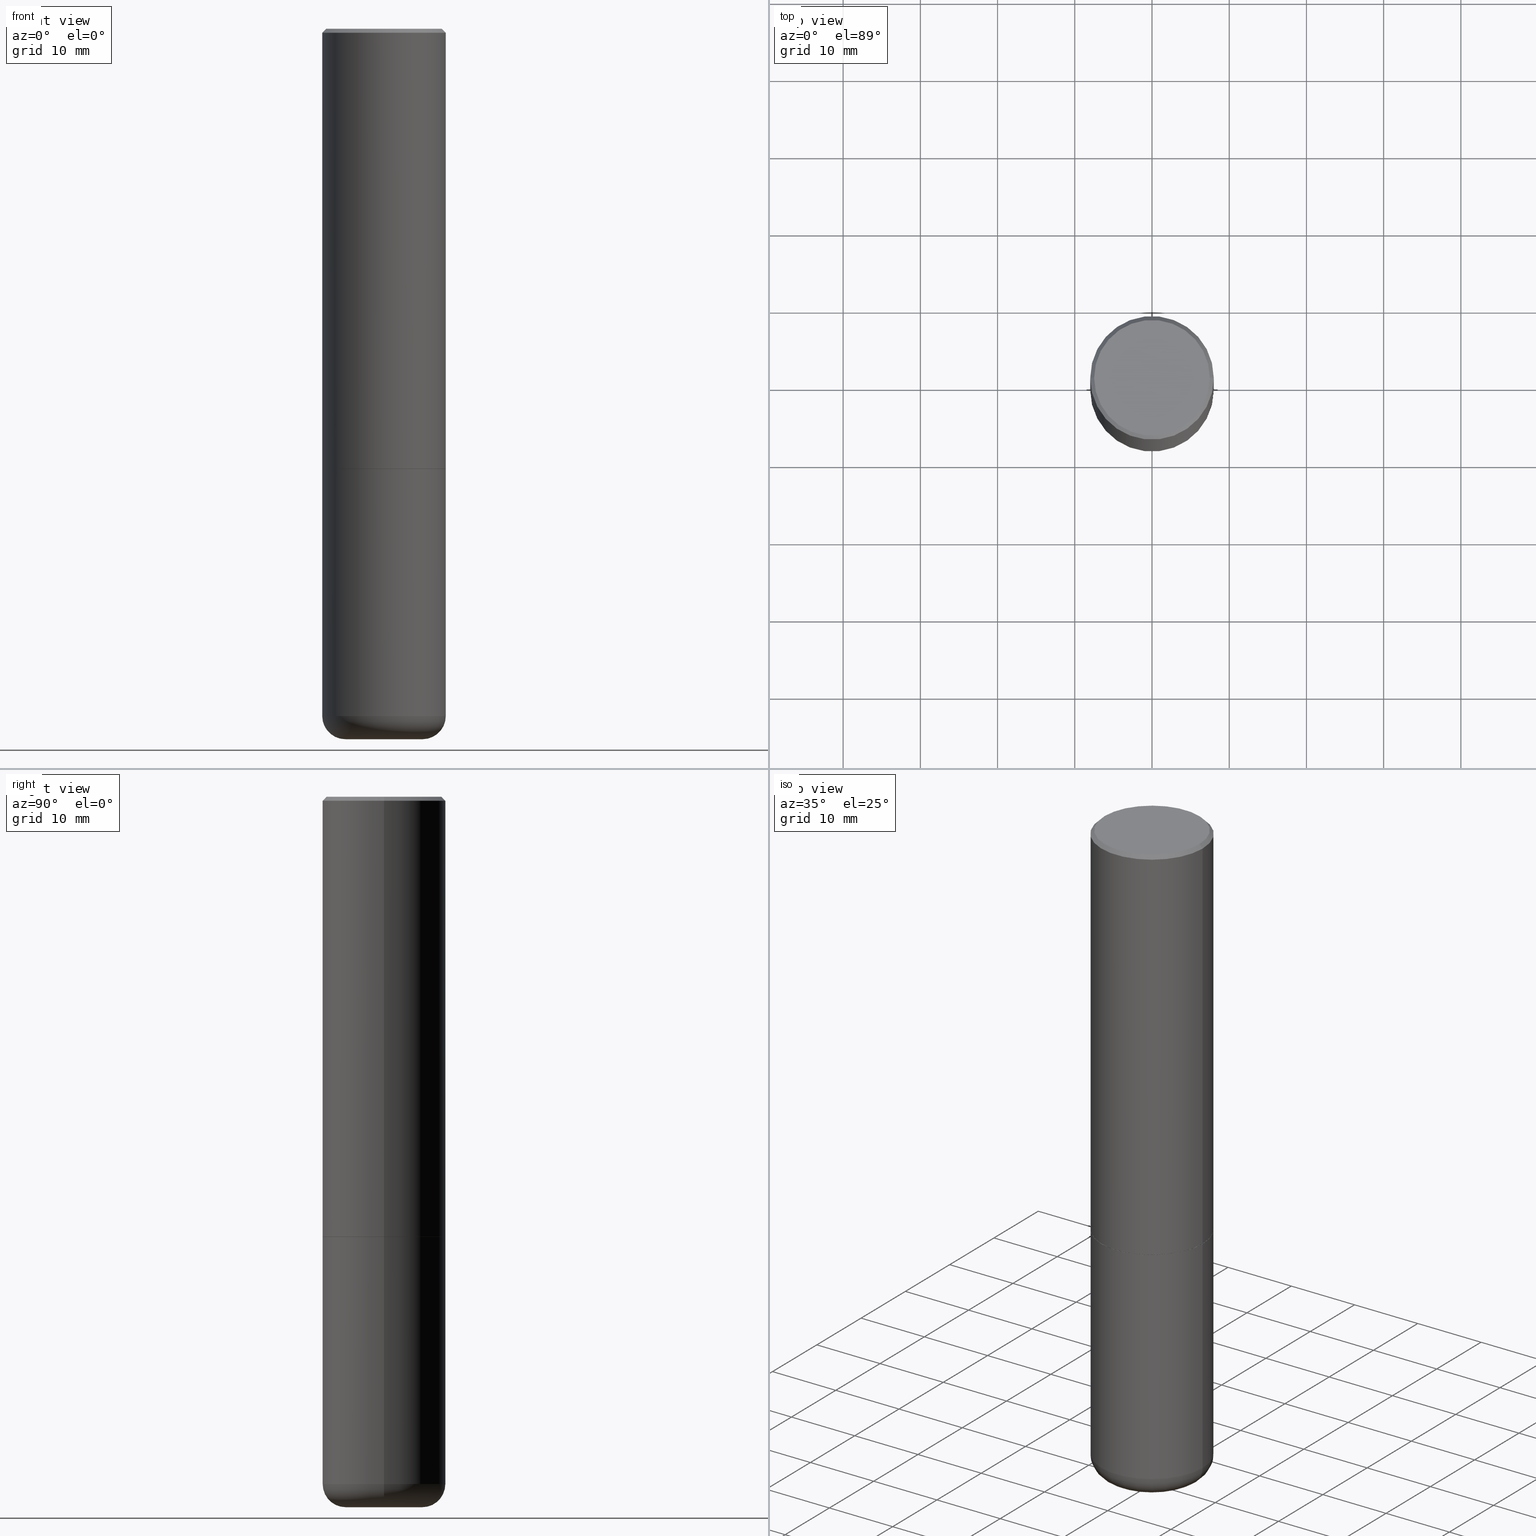
[diagram: canonical four-view strip — front | top / right | iso, engineering-drawing reading convention]
A machine part, canonical four-view strip (front | top / right | iso — engineering-drawing reading convention). The complete STEP part file that produces these views, byte-faithful:
ISO-10303-21;
HEADER;
FILE_DESCRIPTION (( 'STEP AP203' ),
    '1' );
FILE_NAME ('47044.STEP',
    '2024-03-05T14:35:22',
    ( '' ),
    ( '' ),
    'SwSTEP 2.0',
    'SolidWorks 2023',
    '' );
FILE_SCHEMA (( 'CONFIG_CONTROL_DESIGN' ));
ENDSEC;

DATA;
#1 = APPROVAL_DATE_TIME ( #385, #309 ) ;
#2 = EDGE_CURVE ( 'NONE', #321, #258, #166, .T. ) ;
#3 = APPLICATION_CONTEXT ( 'configuration controlled 3d designs of mechanical parts and assemblies' ) ;
#4 = ORIENTED_EDGE ( 'NONE', *, *, #72, .F. ) ;
#5 = CARTESIAN_POINT ( 'NONE',  ( 0.3149500000000002853, -1.003067673836246727E-14, -2.242999999999999883 ) ) ;
#6 = PLANE ( 'NONE',  #366 ) ;
#7 = CARTESIAN_POINT ( 'NONE',  ( 5.487632001079445967E-29, -7.834884124364017250E-15, -2.243999999999999773 ) ) ;
#8 = CARTESIAN_POINT ( 'NONE',  ( 0.3149500000000000077, -2.230543471175007450E-15, -0.02000000000000006981 ) ) ;
#9 = DIRECTION ( 'NONE',  ( -2.445468806185136597E-29, 3.491481338843145583E-15, 1.000000000000000000 ) ) ;
#10 = CIRCLE ( 'NONE', #148, 0.3149500000000002853 ) ;
#11 = APPROVAL_PERSON_ORGANIZATION ( #194, #12, #68 ) ;
#12 = APPROVAL ( #267, 'UNSPECIFIED' ) ;
#13 = EDGE_CURVE ( 'NONE', #211, #258, #276, .T. ) ;
#14 = LINE ( 'NONE', #132, #363 ) ;
#15 =( CONVERSION_BASED_UNIT ( 'INCH', #45 ) LENGTH_UNIT ( ) NAMED_UNIT ( #358 ) );
#16 = FACE_OUTER_BOUND ( 'NONE', #28, .T. ) ;
#17 = CONICAL_SURFACE ( 'NONE', #237, 0.3149500000000000077, 0.7853981633974471688 ) ;
#18 = ORIENTED_EDGE ( 'NONE', *, *, #285, .T. ) ;
#19 = MANIFOLD_SOLID_BREP ( 'Body-Move/Copy2[2]', #343 ) ;
#20 = ADVANCED_FACE ( 'NONE', ( #125 ), #146, .F. ) ;
#21 = DIRECTION ( 'NONE',  ( 1.000000000000000000, -6.982962677686267499E-15, 0.000000000000000000 ) ) ;
#22 = ORIENTED_EDGE ( 'NONE', *, *, #264, .T. ) ;
#23 = DIRECTION ( 'NONE',  ( 1.000000000000000000, -6.982962677686266711E-15, 4.876176775795936353E-29 ) ) ;
#24 = ORIENTED_EDGE ( 'NONE', *, *, #137, .T. ) ;
#25 = APPLICATION_CONTEXT ( 'configuration controlled 3d designs of mechanical parts and assemblies' ) ;
#26 = DIRECTION ( 'NONE',  ( -1.000000000000000000, 6.982962677686265922E-15, -4.876176775795935793E-29 ) ) ;
#27 = CIRCLE ( 'NONE', #74, 0.1180999999999997191 ) ;
#28 = EDGE_LOOP ( 'NONE', ( #231, #300 ) ) ;
#29 = AXIS2_PLACEMENT_3D ( 'NONE', #93, #312, #247 ) ;
#30 = EDGE_LOOP ( 'NONE', ( #32, #22, #262, #345 ) ) ;
#31 = COORDINATED_UNIVERSAL_TIME_OFFSET ( 5, 0, .BEHIND. ) ;
#32 = ORIENTED_EDGE ( 'NONE', *, *, #234, .F. ) ;
#33 = APPROVAL_DATE_TIME ( #158, #12 ) ;
#34 = PLANE ( 'NONE',  #69 ) ;
#35 = CIRCLE ( 'NONE', #261, 0.1968500000000000250 ) ;
#36 = LINE ( 'NONE', #161, #99 ) ;
#37 = DATE_AND_TIME ( #87, #251 ) ;
#38 = APPROVAL ( #351, 'UNSPECIFIED' ) ;
#39 = VECTOR ( 'NONE', #54, 39.37007874015748143 ) ;
#40 = DESIGN_CONTEXT ( 'detailed design', #25, 'design' ) ;
#41 = CIRCLE ( 'NONE', #390, 0.2949499999999998234 ) ;
#42 = EDGE_CURVE ( 'NONE', #141, #104, #27, .T. ) ;
#43 = DIRECTION ( 'NONE',  ( 1.000000000000000000, -6.982962677686263555E-15, 0.000000000000000000 ) ) ;
#44 = DIRECTION ( 'NONE',  ( -1.000000000000000000, 7.105427357601005014E-15, 0.000000000000000000 ) ) ;
#45 = LENGTH_MEASURE_WITH_UNIT ( LENGTH_MEASURE( 0.02539999999999999897 ), #108 );
#46 = CC_DESIGN_PERSON_AND_ORGANIZATION_ASSIGNMENT ( #184, #349, ( #246 ) ) ;
#47 = EDGE_CURVE ( 'NONE', #150, #321, #58, .T. ) ;
#48 = VERTEX_POINT ( 'NONE', #138 ) ;
#49 = CC_DESIGN_APPROVAL ( #12, ( #243 ) ) ;
#50 = LOCAL_TIME ( 9, 35, 22.00000000000000000, #242 ) ;
#51 = DIRECTION ( 'NONE',  ( -2.445468806185136597E-29, 3.491481338843145583E-15, 1.000000000000000000 ) ) ;
#52 = ORIENTED_EDGE ( 'NONE', *, *, #42, .T. ) ;
#53 = DIRECTION ( 'NONE',  ( 1.000000000000000000, -6.982962677686273021E-15, 0.000000000000000000 ) ) ;
#54 = DIRECTION ( 'NONE',  ( -2.445468806185136877E-29, 3.491481338843145188E-15, 1.000000000000000000 ) ) ;
#55 = EDGE_LOOP ( 'NONE', ( #153, #352, #143, #181 ) ) ;
#56 = FACE_OUTER_BOUND ( 'NONE', #411, .T. ) ;
#57 = ORIENTED_EDGE ( 'NONE', *, *, #13, .F. ) ;
#58 = LINE ( 'NONE', #151, #283 ) ;
#59 = EDGE_CURVE ( 'NONE', #211, #102, #296, .T. ) ;
#60 = LOCAL_TIME ( 9, 35, 22.00000000000000000, #418 ) ;
#61 = ORIENTED_EDGE ( 'NONE', *, *, #165, .F. ) ;
#62 = DATE_AND_TIME ( #269, #60 ) ;
#63 = CARTESIAN_POINT ( 'NONE',  ( -0.3149500000000000077, -7.796488447491823147E-15, -2.243999999999999773 ) ) ;
#64 = CARTESIAN_POINT ( 'NONE',  ( -0.3149500000000000077, 2.129454468560426573E-15, -0.02000000000000006981 ) ) ;
#65 = CARTESIAN_POINT ( 'NONE',  ( 5.485186532273261485E-29, -7.831392643025175821E-15, -2.242999999999999883 ) ) ;
#66 = SECURITY_CLASSIFICATION_LEVEL ( 'unclassified' ) ;
#67 = EDGE_CURVE ( 'NONE', #48, #102, #168, .T. ) ;
#68 = APPROVAL_ROLE ( '' ) ;
#69 = AXIS2_PLACEMENT_3D ( 'NONE', #157, #134, #254 ) ;
#70 = DIRECTION ( 'NONE',  ( -2.445468806185136597E-29, 3.491481338843145583E-15, 1.000000000000000000 ) ) ;
#71 = CC_DESIGN_DATE_AND_TIME_ASSIGNMENT ( #62, #114, ( #243 ) ) ;
#72 = EDGE_CURVE ( 'NONE', #206, #268, #14, .T. ) ;
#73 = AXIS2_PLACEMENT_3D ( 'NONE', #417, #124, #241 ) ;
#74 = AXIS2_PLACEMENT_3D ( 'NONE', #341, #334, #53 ) ;
#75 = CONICAL_SURFACE ( 'NONE', #131, 0.3139500000000000068, 0.7853981633975507526 ) ;
#76 = CARTESIAN_POINT ( 'NONE',  ( 0.000000000000000000, 0.000000000000000000, 0.000000000000000000 ) ) ;
#77 = DIRECTION ( 'NONE',  ( -2.445468806185136597E-29, 3.491481338843145583E-15, 1.000000000000000000 ) ) ;
#78 = CARTESIAN_POINT ( 'NONE',  ( -4.384175940207923203E-45, 6.259441315597878405E-31, 1.792775245842172799E-16 ) ) ;
#79 = ADVANCED_FACE ( 'NONE', ( #16 ), #368, .F. ) ;
#80 = CARTESIAN_POINT ( 'NONE',  ( -0.3139500000000000068, -5.598836751096959871E-15, -2.243999999999999773 ) ) ;
#81 = DIRECTION ( 'NONE',  ( -2.445468806185136877E-29, 3.491481338843145188E-15, 1.000000000000000000 ) ) ;
#82 = ORIENTED_EDGE ( 'NONE', *, *, #249, .F. ) ;
#83 = ORIENTED_EDGE ( 'NONE', *, *, #2, .T. ) ;
#84 =( NAMED_UNIT ( * ) PLANE_ANGLE_UNIT ( ) SI_UNIT ( $, .RADIAN. ) );
#85 = ORIENTED_EDGE ( 'NONE', *, *, #359, .F. ) ;
#86 = ADVANCED_FACE ( 'NONE', ( #325 ), #280, .T. ) ;
#87 = CALENDAR_DATE ( 2024, 5, 3 ) ;
#88 = DIRECTION ( 'NONE',  ( 2.438088387897960049E-29, -3.491481338843145188E-15, -1.000000000000000000 ) ) ;
#89 = ORIENTED_EDGE ( 'NONE', *, *, #285, .F. ) ;
#90 = PERSON_AND_ORGANIZATION_ROLE ( 'design_owner' ) ;
#91 = APPROVAL_ROLE ( '' ) ;
#92 = CIRCLE ( 'NONE', #281, 0.3149500000000000077 ) ;
#93 = CARTESIAN_POINT ( 'NONE',  ( 4.890937612370289799E-31, -6.982962677686315028E-17, -0.02000000000000006981 ) ) ;
#94 = LINE ( 'NONE', #324, #177 ) ;
#95 = CARTESIAN_POINT ( 'NONE',  ( 0.000000000000000000, 0.000000000000000000, 0.000000000000000000 ) ) ;
#96 = CARTESIAN_POINT ( 'NONE',  ( 8.857488016002563354E-29, -1.264614540928987041E-14, -3.621999999999999442 ) ) ;
#97 = AXIS2_PLACEMENT_3D ( 'NONE', #259, #51, #373 ) ;
#98 = DIRECTION ( 'NONE',  ( -2.445468806185136597E-29, 3.491481338843145583E-15, 1.000000000000000000 ) ) ;
#99 = VECTOR ( 'NONE', #388, 39.37007874015748143 ) ;
#100 = EDGE_CURVE ( 'NONE', #378, #258, #306, .T. ) ;
#101 = DIRECTION ( 'NONE',  ( 1.000000000000000000, -6.982962677686267499E-15, 0.000000000000000000 ) ) ;
#102 = VERTEX_POINT ( 'NONE', #5 ) ;
#103 = DIRECTION ( 'NONE',  ( 1.000000000000000000, -6.982962677686267499E-15, 4.874125435057324435E-29 ) ) ;
#104 = VERTEX_POINT ( 'NONE', #126 ) ;
#105 = CIRCLE ( 'NONE', #73, 0.3149500000000000077 ) ;
#106 = SECURITY_CLASSIFICATION ( '', '', #66 ) ;
#107 = DIRECTION ( 'NONE',  ( -2.445468806185136597E-29, 3.491481338843145583E-15, 1.000000000000000000 ) ) ;
#108 =( LENGTH_UNIT ( ) NAMED_UNIT ( * ) SI_UNIT ( $, .METRE. ) );
#109 = DIRECTION ( 'NONE',  ( 1.000000000000000000, -6.982962677686266711E-15, 0.000000000000000000 ) ) ;
#110 = ADVANCED_FACE ( 'NONE', ( #355 ), #167, .T. ) ;
#111 = ORIENTED_EDGE ( 'NONE', *, *, #189, .F. ) ;
#112 = DIRECTION ( 'NONE',  ( 2.438088387897960049E-29, -3.491481338843145188E-15, -1.000000000000000000 ) ) ;
#113 = ORIENTED_EDGE ( 'NONE', *, *, #72, .T. ) ;
#114 = DATE_TIME_ROLE ( 'creation_date' ) ;
#115 = EDGE_LOOP ( 'NONE', ( #362, #85 ) ) ;
#116 = CC_DESIGN_PERSON_AND_ORGANIZATION_ASSIGNMENT ( #232, #240, ( #243 ) ) ;
#117 = EDGE_CURVE ( 'NONE', #150, #378, #381, .T. ) ;
#118 =( GEOMETRIC_REPRESENTATION_CONTEXT ( 3 ) GLOBAL_UNCERTAINTY_ASSIGNED_CONTEXT ( ( #394 ) ) GLOBAL_UNIT_ASSIGNED_CONTEXT ( ( #15, #84, #327 ) ) REPRESENTATION_CONTEXT ( 'NONE', 'WORKASPACE' ) );
#119 = DIRECTION ( 'NONE',  ( -2.445468806185136597E-29, 3.491481338843145583E-15, 1.000000000000000000 ) ) ;
#120 = DIRECTION ( 'NONE',  ( 1.000000000000000000, 0.000000000000000000, 0.000000000000000000 ) ) ;
#121 = CARTESIAN_POINT ( 'NONE',  ( 1.587752295914809676E-28, -2.593055815129891410E-15, -3.621999999999999886 ) ) ;
#122 = PERSON_AND_ORGANIZATION_ROLE ( 'creator' ) ;
#123 = SHAPE_DEFINITION_REPRESENTATION ( #159, #188 ) ;
#124 = DIRECTION ( 'NONE',  ( -2.445468806185136597E-29, 3.491481338843145583E-15, 1.000000000000000000 ) ) ;
#125 = FACE_OUTER_BOUND ( 'NONE', #340, .T. ) ;
#126 = CARTESIAN_POINT ( 'NONE',  ( 0.3149499999999998967, -1.443308555850978615E-14, -3.503899999999999793 ) ) ;
#127 = AXIS2_PLACEMENT_3D ( 'NONE', #172, #77, #282 ) ;
#128 = ADVANCED_FACE ( 'NONE', ( #384 ), #34, .F. ) ;
#129 = CARTESIAN_POINT ( 'NONE',  ( -0.3149499999999998967, -9.995947116896063452E-15, -3.503899999999999793 ) ) ;
#130 = DIRECTION ( 'NONE',  ( 1.000000000000000000, -6.982962677686264344E-15, 0.000000000000000000 ) ) ;
#131 = AXIS2_PLACEMENT_3D ( 'NONE', #393, #389, #271 ) ;
#132 = CARTESIAN_POINT ( 'NONE',  ( -0.3149500000000000077, 2.237854346276435590E-15, -1.549218606675782676E-29 ) ) ;
#133 = CARTESIAN_POINT ( 'NONE',  ( 0.2949499999999998234, -2.127023677808859286E-15, 1.792775245842319231E-16 ) ) ;
#134 = DIRECTION ( 'NONE',  ( -2.438088387897960049E-29, 3.491481338843145188E-15, 1.000000000000000000 ) ) ;
#135 = DIRECTION ( 'NONE',  ( -2.445468806185136597E-29, 3.491481338843145583E-15, 1.000000000000000000 ) ) ;
#136 = AXIS2_PLACEMENT_3D ( 'NONE', #156, #98, #330 ) ;
#137 = EDGE_CURVE ( 'NONE', #260, #268, #92, .T. ) ;
#138 = CARTESIAN_POINT ( 'NONE',  ( 0.3139500000000000068, -1.002718525702362111E-14, -2.243999999999999773 ) ) ;
#139 = DIRECTION ( 'NONE',  ( 1.000000000000000000, -6.982962677686266711E-15, 0.000000000000000000 ) ) ;
#140 = CARTESIAN_POINT ( 'NONE',  ( -0.2949499999999998234, 2.094539655171995318E-15, 1.792775245842027353E-16 ) ) ;
#141 = VERTEX_POINT ( 'NONE', #342 ) ;
#142 = DIRECTION ( 'NONE',  ( 7.105427357601001859E-15, 1.000000000000000000, -3.491481338843145583E-15 ) ) ;
#143 = ORIENTED_EDGE ( 'NONE', *, *, #100, .T. ) ;
#144 = DIRECTION ( 'NONE',  ( -2.445468806185136597E-29, 3.491481338843145583E-15, 1.000000000000000000 ) ) ;
#145 = FACE_OUTER_BOUND ( 'NONE', #179, .T. ) ;
#146 = PLANE ( 'NONE',  #416 ) ;
#147 = VERTEX_POINT ( 'NONE', #80 ) ;
#148 = AXIS2_PLACEMENT_3D ( 'NONE', #326, #107, #403 ) ;
#149 = APPROVAL_PERSON_ORGANIZATION ( #160, #38, #91 ) ;
#150 = VERTEX_POINT ( 'NONE', #133 ) ;
#151 = CARTESIAN_POINT ( 'NONE',  ( 0.3149500000000000077, -2.230543471175007450E-15, -0.02000000000000006981 ) ) ;
#152 = PERSON_AND_ORGANIZATION ( #356, #197 ) ;
#153 = ORIENTED_EDGE ( 'NONE', *, *, #47, .F. ) ;
#154 = EDGE_CURVE ( 'NONE', #258, #321, #222, .T. ) ;
#155 = PERSON_AND_ORGANIZATION ( #356, #197 ) ;
#156 = CARTESIAN_POINT ( 'NONE',  ( 4.890937612370289799E-31, -6.982962677686315028E-17, -0.02000000000000006981 ) ) ;
#157 = CARTESIAN_POINT ( 'NONE',  ( 5.487632001079445967E-29, -7.834884124364017250E-15, -2.243999999999999773 ) ) ;
#158 = DATE_AND_TIME ( #413, #354 ) ;
#159 = PRODUCT_DEFINITION_SHAPE ( 'NONE', 'NONE',  #243 ) ;
#160 = PERSON_AND_ORGANIZATION ( #356, #197 ) ;
#161 = CARTESIAN_POINT ( 'NONE',  ( 0.3149500000000000077, -2.199284095337289871E-15, 1.535751875536930130E-29 ) ) ;
#162 = CALENDAR_DATE ( 2024, 5, 3 ) ;
#163 = EDGE_LOOP ( 'NONE', ( #233, #113, #414, #291 ) ) ;
#164 = FACE_OUTER_BOUND ( 'NONE', #329, .T. ) ;
#165 = EDGE_CURVE ( 'NONE', #102, #211, #10, .T. ) ;
#166 = CIRCLE ( 'NONE', #136, 0.3149500000000000077 ) ;
#167 = CONICAL_SURFACE ( 'NONE', #29, 0.3149500000000000077, 0.7853981633974471688 ) ;
#168 = LINE ( 'NONE', #400, #196 ) ;
#169 = DIRECTION ( 'NONE',  ( 1.000000000000000000, -6.982962677686266711E-15, 4.876176775795936353E-29 ) ) ;
#170 = CLOSED_SHELL ( 'NONE', ( #199, #227, #20, #401, #374, #273 ) ) ;
#171 = AXIS2_PLACEMENT_3D ( 'NONE', #357, #305, #275 ) ;
#172 = CARTESIAN_POINT ( 'NONE',  ( 8.568678149992099474E-29, -1.223380146317249786E-14, -3.503899999999999793 ) ) ;
#173 = CARTESIAN_POINT ( 'NONE',  ( -0.3149500000000001743, 2.237854346276436774E-15, -1.549218606675783237E-29 ) ) ;
#174 = DIRECTION ( 'NONE',  ( 0.7071067811866199593, -2.468850131083015945E-15, 0.7071067811864750752 ) ) ;
#175 = AXIS2_PLACEMENT_3D ( 'NONE', #297, #88, #210 ) ;
#176 = VECTOR ( 'NONE', #81, 39.37007874015748143 ) ;
#177 = VECTOR ( 'NONE', #361, 39.37007874015748143 ) ;
#178 = ORIENTED_EDGE ( 'NONE', *, *, #359, .T. ) ;
#179 = EDGE_LOOP ( 'NONE', ( #375, #294, #83, #236 ) ) ;
#180 = CARTESIAN_POINT ( 'NONE',  ( 4.890937612370289799E-31, -6.982962677686315028E-17, -0.02000000000000006981 ) ) ;
#181 = ORIENTED_EDGE ( 'NONE', *, *, #154, .T. ) ;
#182 = ORIENTED_EDGE ( 'NONE', *, *, #189, .T. ) ;
#183 = CIRCLE ( 'NONE', #364, 0.3139500000000000068 ) ;
#184 = PERSON_AND_ORGANIZATION ( #356, #197 ) ;
#185 = EDGE_LOOP ( 'NONE', ( #4, #18, #265, #111 ) ) ;
#186 = APPLICATION_PROTOCOL_DEFINITION ( 'international standard', 'config_control_design', 1994, #25 ) ;
#187 = FACE_OUTER_BOUND ( 'NONE', #115, .T. ) ;
#188 = ADVANCED_BREP_SHAPE_REPRESENTATION ( '47044', ( #278, #19, #289 ), #118 ) ;
#189 = EDGE_CURVE ( 'NONE', #268, #260, #372, .T. ) ;
#190 = CALENDAR_DATE ( 2024, 5, 3 ) ;
#191 = CIRCLE ( 'NONE', #256, 0.1968500000000000250 ) ;
#192 = APPROVAL_ROLE ( '' ) ;
#193 = ADVANCED_FACE ( 'NONE', ( #244 ), #75, .T. ) ;
#194 = PERSON_AND_ORGANIZATION ( #356, #197 ) ;
#195 = CYLINDRICAL_SURFACE ( 'NONE', #331, 0.3149500000000000077 ) ;
#196 = VECTOR ( 'NONE', #174, 39.37007874015748143 ) ;
#197 = ORGANIZATION ( 'UNSPECIFIED', 'UNSPECIFIED', '' ) ;
#198 = ADVANCED_FACE ( 'NONE', ( #219 ), #311, .T. ) ;
#199 = ADVANCED_FACE ( 'NONE', ( #395 ), #195, .T. ) ;
#200 = DIRECTION ( 'NONE',  ( -2.445468806185136597E-29, 3.491481338843145583E-15, 1.000000000000000000 ) ) ;
#201 = EDGE_LOOP ( 'NONE', ( #57, #228, #245, #286 ) ) ;
#202 = DIRECTION ( 'NONE',  ( -2.445468806185136597E-29, 3.491481338843145583E-15, 1.000000000000000000 ) ) ;
#203 = CARTESIAN_POINT ( 'NONE',  ( 5.487632001079445967E-29, -7.834884124364017250E-15, -2.243999999999999773 ) ) ;
#204 = ORIENTED_EDGE ( 'NONE', *, *, #365, .F. ) ;
#205 = LINE ( 'NONE', #335, #39 ) ;
#206 = VERTEX_POINT ( 'NONE', #129 ) ;
#207 = CARTESIAN_POINT ( 'NONE',  ( 5.487632001079445967E-29, -7.834884124364017250E-15, -2.243999999999999773 ) ) ;
#208 = ORIENTED_EDGE ( 'NONE', *, *, #365, .T. ) ;
#209 = DATE_AND_TIME ( #190, #404 ) ;
#210 = DIRECTION ( 'NONE',  ( -1.000000000000000000, 6.982962677686265922E-15, -4.876176775795935793E-29 ) ) ;
#211 = VERTEX_POINT ( 'NONE', #252 ) ;
#212 = TOROIDAL_SURFACE ( 'NONE', #97, 0.1968500000000000250, 0.1180999999999997468 ) ;
#213 = CARTESIAN_POINT ( 'NONE',  ( 0.000000000000000000, 0.000000000000000000, 0.000000000000000000 ) ) ;
#214 = EDGE_CURVE ( 'NONE', #141, #412, #191, .T. ) ;
#215 = ORIENTED_EDGE ( 'NONE', *, *, #13, .T. ) ;
#216 = PERSON_AND_ORGANIZATION_ROLE ( 'classification_officer' ) ;
#217 = AXIS2_PLACEMENT_3D ( 'NONE', #328, #387, #279 ) ;
#218 = CYLINDRICAL_SURFACE ( 'NONE', #171, 0.3149500000000001743 ) ;
#219 = FACE_OUTER_BOUND ( 'NONE', #201, .T. ) ;
#220 = CARTESIAN_POINT ( 'NONE',  ( -0.3149500000000000077, 2.129454468560426573E-15, -0.02000000000000006981 ) ) ;
#221 = VECTOR ( 'NONE', #392, 39.37007874015748143 ) ;
#222 = CIRCLE ( 'NONE', #353, 0.3149500000000000077 ) ;
#223 = DIRECTION ( 'NONE',  ( -2.445468806185136597E-29, 3.491481338843145583E-15, 1.000000000000000000 ) ) ;
#224 = DIRECTION ( 'NONE',  ( 1.000000000000000000, -6.982962677686266711E-15, 0.000000000000000000 ) ) ;
#225 = AXIS2_PLACEMENT_3D ( 'NONE', #415, #119, #239 ) ;
#226 = CC_DESIGN_PERSON_AND_ORGANIZATION_ASSIGNMENT ( #299, #122, ( #246 ) ) ;
#227 = ADVANCED_FACE ( 'NONE', ( #317 ), #397, .T. ) ;
#228 = ORIENTED_EDGE ( 'NONE', *, *, #59, .T. ) ;
#229 = AXIS2_PLACEMENT_3D ( 'NONE', #207, #338, #224 ) ;
#230 = ORIENTED_EDGE ( 'NONE', *, *, #67, .F. ) ;
#231 = ORIENTED_EDGE ( 'NONE', *, *, #337, .T. ) ;
#232 = PERSON_AND_ORGANIZATION ( #356, #197 ) ;
#233 = ORIENTED_EDGE ( 'NONE', *, *, #249, .T. ) ;
#234 = EDGE_CURVE ( 'NONE', #147, #211, #94, .T. ) ;
#235 = APPROVAL_STATUS ( 'not_yet_approved' ) ;
#236 = ORIENTED_EDGE ( 'NONE', *, *, #100, .F. ) ;
#237 = AXIS2_PLACEMENT_3D ( 'NONE', #376, #323, #409 ) ;
#238 = APPROVAL_PERSON_ORGANIZATION ( #152, #309, #192 ) ;
#239 = DIRECTION ( 'NONE',  ( 1.000000000000000000, -6.982962677686267499E-15, 4.874125435057324435E-29 ) ) ;
#240 = PERSON_AND_ORGANIZATION_ROLE ( 'creator' ) ;
#241 = DIRECTION ( 'NONE',  ( 1.000000000000000000, -6.982962677686263555E-15, 0.000000000000000000 ) ) ;
#242 = COORDINATED_UNIVERSAL_TIME_OFFSET ( 5, 0, .BEHIND. ) ;
#243 = PRODUCT_DEFINITION ( 'UNKNOWN', '', #246, #40 ) ;
#244 = FACE_OUTER_BOUND ( 'NONE', #30, .T. ) ;
#245 = ORIENTED_EDGE ( 'NONE', *, *, #396, .T. ) ;
#246 = PRODUCT_DEFINITION_FORMATION_WITH_SPECIFIED_SOURCE ( 'ANY', '', #346, .NOT_KNOWN. ) ;
#247 = DIRECTION ( 'NONE',  ( -1.000000000000000000, 6.982962677686266711E-15, 0.000000000000000000 ) ) ;
#248 = DIRECTION ( 'NONE',  ( 1.000000000000000000, -6.982962677686265922E-15, 4.876176775795935232E-29 ) ) ;
#249 = EDGE_CURVE ( 'NONE', #104, #206, #318, .T. ) ;
#250 = CIRCLE ( 'NONE', #402, 0.1180999999999997191 ) ;
#251 = LOCAL_TIME ( 9, 35, 22.00000000000000000, #347 ) ;
#252 = CARTESIAN_POINT ( 'NONE',  ( -0.3149500000000002853, -1.712756788624580222E-15, -2.242999999999999883 ) ) ;
#253 = CARTESIAN_POINT ( 'NONE',  ( 8.568678149992099474E-29, -1.223380146317249786E-14, -3.503899999999999793 ) ) ;
#254 = DIRECTION ( 'NONE',  ( 1.000000000000000000, -6.982962677686265922E-15, 4.876176775795935793E-29 ) ) ;
#255 = DIRECTION ( 'NONE',  ( -2.445468806185136597E-29, 3.491481338843145583E-15, 1.000000000000000000 ) ) ;
#256 = AXIS2_PLACEMENT_3D ( 'NONE', #96, #399, #319 ) ;
#257 = EDGE_CURVE ( 'NONE', #48, #147, #284, .T. ) ;
#258 = VERTEX_POINT ( 'NONE', #64 ) ;
#259 = CARTESIAN_POINT ( 'NONE',  ( 8.568678149992099474E-29, -1.223380146317249786E-14, -3.503899999999999793 ) ) ;
#260 = VERTEX_POINT ( 'NONE', #350 ) ;
#261 = AXIS2_PLACEMENT_3D ( 'NONE', #295, #135, #21 ) ;
#262 = ORIENTED_EDGE ( 'NONE', *, *, #67, .T. ) ;
#263 = CARTESIAN_POINT ( 'NONE',  ( -0.1968500000000000250, -1.062169457542108764E-14, -3.621999999999999442 ) ) ;
#264 = EDGE_CURVE ( 'NONE', #147, #48, #183, .T. ) ;
#265 = ORIENTED_EDGE ( 'NONE', *, *, #303, .T. ) ;
#266 = DIRECTION ( 'NONE',  ( 0.7071067811865466846, -7.319954787623252890E-15, -0.7071067811865483499 ) ) ;
#267 = APPROVAL_STATUS ( 'not_yet_approved' ) ;
#268 = VERTEX_POINT ( 'NONE', #63 ) ;
#269 = CALENDAR_DATE ( 2024, 5, 3 ) ;
#270 = AXIS2_PLACEMENT_3D ( 'NONE', #65, #320, #101 ) ;
#271 = DIRECTION ( 'NONE',  ( 1.000000000000000000, -6.982962677686264344E-15, 0.000000000000000000 ) ) ;
#272 = AXIS2_PLACEMENT_3D ( 'NONE', #95, #315, #248 ) ;
#273 = ADVANCED_FACE ( 'NONE', ( #187 ), #6, .T. ) ;
#274 = APPROVAL_DATE_TIME ( #37, #38 ) ;
#275 = DIRECTION ( 'NONE',  ( 1.000000000000000000, -6.982962677686265922E-15, 4.876176775795935232E-29 ) ) ;
#276 = LINE ( 'NONE', #173, #176 ) ;
#277 = DIRECTION ( 'NONE',  ( 0.000000000000000000, 0.000000000000000000, 1.000000000000000000 ) ) ;
#278 = MANIFOLD_SOLID_BREP ( 'Body-Move/Copy2[1]', #170 ) ;
#279 = DIRECTION ( 'NONE',  ( 1.000000000000000000, -6.982962677686264344E-15, 0.000000000000000000 ) ) ;
#280 = CONICAL_SURFACE ( 'NONE', #217, 0.3139500000000000068, 0.7853981633975507526 ) ;
#281 = AXIS2_PLACEMENT_3D ( 'NONE', #369, #202, #109 ) ;
#282 = DIRECTION ( 'NONE',  ( 1.000000000000000000, -6.982962677686269866E-15, 4.883557194083114022E-29 ) ) ;
#283 = VECTOR ( 'NONE', #266, 39.37007874015748143 ) ;
#284 = CIRCLE ( 'NONE', #408, 0.3139500000000000068 ) ;
#285 = EDGE_CURVE ( 'NONE', #206, #104, #105, .T. ) ;
#286 = ORIENTED_EDGE ( 'NONE', *, *, #154, .F. ) ;
#287 = CC_DESIGN_DATE_AND_TIME_ASSIGNMENT ( #209, #304, ( #106 ) ) ;
#288 = DIRECTION ( 'NONE',  ( -2.445468806185136877E-29, 3.491481338843145188E-15, 1.000000000000000000 ) ) ;
#289 = AXIS2_PLACEMENT_3D ( 'NONE', #213, #277, #120 ) ;
#290 = EDGE_LOOP ( 'NONE', ( #333, #405 ) ) ;
#291 = ORIENTED_EDGE ( 'NONE', *, *, #303, .F. ) ;
#292 = CC_DESIGN_PERSON_AND_ORGANIZATION_ASSIGNMENT ( #301, #216, ( #106 ) ) ;
#293 = CYLINDRICAL_SURFACE ( 'NONE', #316, 0.3149500000000000077 ) ;
#294 = ORIENTED_EDGE ( 'NONE', *, *, #47, .T. ) ;
#295 = CARTESIAN_POINT ( 'NONE',  ( 8.857488016002563354E-29, -1.264614540928987041E-14, -3.621999999999999442 ) ) ;
#296 = CIRCLE ( 'NONE', #270, 0.3149500000000002853 ) ;
#297 = CARTESIAN_POINT ( 'NONE',  ( 2.059624841783562880E-15, 0.2949499999999998234, -9.401736585996764239E-16 ) ) ;
#298 = ORIENTED_EDGE ( 'NONE', *, *, #42, .F. ) ;
#299 = PERSON_AND_ORGANIZATION ( #356, #197 ) ;
#300 = ORIENTED_EDGE ( 'NONE', *, *, #117, .T. ) ;
#301 = PERSON_AND_ORGANIZATION ( #356, #197 ) ;
#302 = DIRECTION ( 'NONE',  ( -1.000000000000000000, 6.982962677686265922E-15, -4.876176775795935793E-29 ) ) ;
#303 = EDGE_CURVE ( 'NONE', #104, #260, #36, .T. ) ;
#304 = DATE_TIME_ROLE ( 'classification_date' ) ;
#305 = DIRECTION ( 'NONE',  ( -2.445468806185136597E-29, 3.491481338843145583E-15, 1.000000000000000000 ) ) ;
#306 = LINE ( 'NONE', #220, #221 ) ;
#307 = CARTESIAN_POINT ( 'NONE',  ( 5.487632001079445967E-29, -7.834884124364017250E-15, -2.243999999999999773 ) ) ;
#308 = ORIENTED_EDGE ( 'NONE', *, *, #396, .F. ) ;
#309 = APPROVAL ( #235, 'UNSPECIFIED' ) ;
#310 = COORDINATED_UNIVERSAL_TIME_OFFSET ( 5, 0, .BEHIND. ) ;
#311 = CYLINDRICAL_SURFACE ( 'NONE', #272, 0.3149500000000001743 ) ;
#312 = DIRECTION ( 'NONE',  ( 2.445468806185136597E-29, -3.491481338843145583E-15, -1.000000000000000000 ) ) ;
#313 = DIRECTION ( 'NONE',  ( -2.445468806185136597E-29, 3.491481338843145583E-15, 1.000000000000000000 ) ) ;
#314 = ADVANCED_FACE ( 'NONE', ( #164 ), #218, .T. ) ;
#315 = DIRECTION ( 'NONE',  ( -2.445468806185136597E-29, 3.491481338843145583E-15, 1.000000000000000000 ) ) ;
#316 = AXIS2_PLACEMENT_3D ( 'NONE', #76, #255, #23 ) ;
#317 = FACE_OUTER_BOUND ( 'NONE', #383, .T. ) ;
#318 = CIRCLE ( 'NONE', #344, 0.3149500000000000077 ) ;
#319 = DIRECTION ( 'NONE',  ( 1.000000000000000000, -6.982962677686267499E-15, 0.000000000000000000 ) ) ;
#320 = DIRECTION ( 'NONE',  ( -2.445468806185136597E-29, 3.491481338843145583E-15, 1.000000000000000000 ) ) ;
#321 = VERTEX_POINT ( 'NONE', #8 ) ;
#322 = PRODUCT_RELATED_PRODUCT_CATEGORY ( 'detail', '', ( #346 ) ) ;
#323 = DIRECTION ( 'NONE',  ( 2.445468806185136597E-29, -3.491481338843145583E-15, -1.000000000000000000 ) ) ;
#324 = CARTESIAN_POINT ( 'NONE',  ( -0.3139500000000000068, -5.604135205445183851E-15, -2.243999999999999773 ) ) ;
#325 = FACE_OUTER_BOUND ( 'NONE', #336, .T. ) ;
#326 = CARTESIAN_POINT ( 'NONE',  ( 5.485186532273261485E-29, -7.831392643025175821E-15, -2.242999999999999883 ) ) ;
#327 =( NAMED_UNIT ( * ) SI_UNIT ( $, .STERADIAN. ) SOLID_ANGLE_UNIT ( ) );
#328 = CARTESIAN_POINT ( 'NONE',  ( 5.487632001079445967E-29, -7.834884124364017250E-15, -2.243999999999999773 ) ) ;
#329 = EDGE_LOOP ( 'NONE', ( #377, #215, #386, #308 ) ) ;
#330 = DIRECTION ( 'NONE',  ( 1.000000000000000000, -6.982962677686266711E-15, 0.000000000000000000 ) ) ;
#331 = AXIS2_PLACEMENT_3D ( 'NONE', #360, #313, #169 ) ;
#332 = CARTESIAN_POINT ( 'NONE',  ( -0.1968500000000000250, -1.083509808782873928E-14, -3.503899999999999793 ) ) ;
#333 = ORIENTED_EDGE ( 'NONE', *, *, #257, .F. ) ;
#334 = DIRECTION ( 'NONE',  ( -6.982962677686266711E-15, -1.000000000000000000, 3.491481338843145583E-15 ) ) ;
#335 = CARTESIAN_POINT ( 'NONE',  ( 0.3149500000000001743, -2.199284095337290660E-15, 1.535751875536930690E-29 ) ) ;
#336 = EDGE_LOOP ( 'NONE', ( #339, #371, #61, #230 ) ) ;
#337 = EDGE_CURVE ( 'NONE', #378, #150, #41, .T. ) ;
#338 = DIRECTION ( 'NONE',  ( -2.445468806185136597E-29, 3.491481338843145583E-15, 1.000000000000000000 ) ) ;
#339 = ORIENTED_EDGE ( 'NONE', *, *, #257, .T. ) ;
#340 = EDGE_LOOP ( 'NONE', ( #24, #182 ) ) ;
#341 = CARTESIAN_POINT ( 'NONE',  ( 0.1968500000000000250, -1.360839766627503947E-14, -3.503899999999999793 ) ) ;
#342 = CARTESIAN_POINT ( 'NONE',  ( 0.1968500000000000250, -1.402074161239241202E-14, -3.621999999999999442 ) ) ;
#343 = CLOSED_SHELL ( 'NONE', ( #86, #314, #406, #110, #198, #193, #128, #79 ) ) ;
#344 = AXIS2_PLACEMENT_3D ( 'NONE', #253, #9, #43 ) ;
#345 = ORIENTED_EDGE ( 'NONE', *, *, #59, .F. ) ;
#346 = PRODUCT ( '47044', '47044', '', ( #379 ) ) ;
#347 = COORDINATED_UNIVERSAL_TIME_OFFSET ( 5, 0, .BEHIND. ) ;
#348 = DIRECTION ( 'NONE',  ( 2.438088387897960049E-29, -3.491481338843145188E-15, -1.000000000000000000 ) ) ;
#349 = PERSON_AND_ORGANIZATION_ROLE ( 'design_supplier' ) ;
#350 = CARTESIAN_POINT ( 'NONE',  ( 0.3149500000000000077, -1.003416821970130712E-14, -2.243999999999999773 ) ) ;
#351 = APPROVAL_STATUS ( 'not_yet_approved' ) ;
#352 = ORIENTED_EDGE ( 'NONE', *, *, #337, .F. ) ;
#353 = AXIS2_PLACEMENT_3D ( 'NONE', #180, #144, #139 ) ;
#354 = LOCAL_TIME ( 9, 35, 22.00000000000000000, #310 ) ;
#355 = FACE_OUTER_BOUND ( 'NONE', #55, .T. ) ;
#356 = PERSON ( 'UNSPECIFIED', 'UNSPECIFIED', 'UNSPECIFIED', ('UNSPECIFIED'), ('UNSPECIFIED'), ('UNSPECIFIED') ) ;
#357 = CARTESIAN_POINT ( 'NONE',  ( 0.000000000000000000, 0.000000000000000000, 0.000000000000000000 ) ) ;
#358 = DIMENSIONAL_EXPONENTS ( 1.000000000000000000, 0.000000000000000000, 0.000000000000000000, 0.000000000000000000, 0.000000000000000000, 0.000000000000000000, 0.000000000000000000 ) ;
#359 = EDGE_CURVE ( 'NONE', #412, #141, #35, .T. ) ;
#360 = CARTESIAN_POINT ( 'NONE',  ( 0.000000000000000000, 0.000000000000000000, 0.000000000000000000 ) ) ;
#361 = DIRECTION ( 'NONE',  ( -0.7071067811866199593, 7.493145998870616062E-15, 0.7071067811864750752 ) ) ;
#362 = ORIENTED_EDGE ( 'NONE', *, *, #214, .F. ) ;
#363 = VECTOR ( 'NONE', #288, 39.37007874015748143 ) ;
#364 = AXIS2_PLACEMENT_3D ( 'NONE', #307, #70, #380 ) ;
#365 = EDGE_CURVE ( 'NONE', #412, #206, #250, .T. ) ;
#366 = AXIS2_PLACEMENT_3D ( 'NONE', #121, #348, #302 ) ;
#367 = FACE_OUTER_BOUND ( 'NONE', #185, .T. ) ;
#368 = PLANE ( 'NONE',  #175 ) ;
#369 = CARTESIAN_POINT ( 'NONE',  ( 5.487632001079445967E-29, -7.834884124364017250E-15, -2.243999999999999773 ) ) ;
#370 = APPLICATION_PROTOCOL_DEFINITION ( 'international standard', 'config_control_design', 1994, #3 ) ;
#371 = ORIENTED_EDGE ( 'NONE', *, *, #234, .T. ) ;
#372 = CIRCLE ( 'NONE', #229, 0.3149500000000000077 ) ;
#373 = DIRECTION ( 'NONE',  ( 1.000000000000000000, -6.982962677686269866E-15, 4.883557194083114022E-29 ) ) ;
#374 = ADVANCED_FACE ( 'NONE', ( #56 ), #212, .T. ) ;
#375 = ORIENTED_EDGE ( 'NONE', *, *, #117, .F. ) ;
#376 = CARTESIAN_POINT ( 'NONE',  ( 4.890937612370289799E-31, -6.982962677686315028E-17, -0.02000000000000006981 ) ) ;
#377 = ORIENTED_EDGE ( 'NONE', *, *, #165, .T. ) ;
#378 = VERTEX_POINT ( 'NONE', #140 ) ;
#379 = MECHANICAL_CONTEXT ( 'NONE', #3, 'mechanical' ) ;
#380 = DIRECTION ( 'NONE',  ( 1.000000000000000000, -6.982962677686264344E-15, 0.000000000000000000 ) ) ;
#381 = CIRCLE ( 'NONE', #225, 0.2949499999999998234 ) ;
#382 = CC_DESIGN_APPROVAL ( #309, ( #106 ) ) ;
#383 = EDGE_LOOP ( 'NONE', ( #407, #208, #82, #298 ) ) ;
#384 = FACE_OUTER_BOUND ( 'NONE', #290, .T. ) ;
#385 = DATE_AND_TIME ( #162, #50 ) ;
#386 = ORIENTED_EDGE ( 'NONE', *, *, #2, .F. ) ;
#387 = DIRECTION ( 'NONE',  ( -2.445468806185136597E-29, 3.491481338843145583E-15, 1.000000000000000000 ) ) ;
#388 = DIRECTION ( 'NONE',  ( -2.445468806185136877E-29, 3.491481338843145188E-15, 1.000000000000000000 ) ) ;
#389 = DIRECTION ( 'NONE',  ( -2.445468806185136597E-29, 3.491481338843145583E-15, 1.000000000000000000 ) ) ;
#390 = AXIS2_PLACEMENT_3D ( 'NONE', #78, #200, #103 ) ;
#391 = CC_DESIGN_SECURITY_CLASSIFICATION ( #106, ( #246 ) ) ;
#392 = DIRECTION ( 'NONE',  ( -0.7071067811865466846, 2.468850131082247989E-15, -0.7071067811865483499 ) ) ;
#393 = CARTESIAN_POINT ( 'NONE',  ( 5.487632001079445967E-29, -7.834884124364017250E-15, -2.243999999999999773 ) ) ;
#394 = UNCERTAINTY_MEASURE_WITH_UNIT (LENGTH_MEASURE( 1.000000000000000082E-05 ), #15, 'distance_accuracy_value', 'NONE');
#395 = FACE_OUTER_BOUND ( 'NONE', #163, .T. ) ;
#396 = EDGE_CURVE ( 'NONE', #102, #321, #205, .T. ) ;
#397 = TOROIDAL_SURFACE ( 'NONE', #127, 0.1968500000000000250, 0.1180999999999997468 ) ;
#398 = CC_DESIGN_PERSON_AND_ORGANIZATION_ASSIGNMENT ( #155, #90, ( #346 ) ) ;
#399 = DIRECTION ( 'NONE',  ( -2.445468806185136597E-29, 3.491481338843145583E-15, 1.000000000000000000 ) ) ;
#400 = CARTESIAN_POINT ( 'NONE',  ( 0.3139500000000000068, -1.002718525702362111E-14, -2.243999999999999773 ) ) ;
#401 = ADVANCED_FACE ( 'NONE', ( #367 ), #293, .T. ) ;
#402 = AXIS2_PLACEMENT_3D ( 'NONE', #332, #142, #44 ) ;
#403 = DIRECTION ( 'NONE',  ( 1.000000000000000000, -6.982962677686267499E-15, 0.000000000000000000 ) ) ;
#404 = LOCAL_TIME ( 9, 35, 22.00000000000000000, #31 ) ;
#405 = ORIENTED_EDGE ( 'NONE', *, *, #264, .F. ) ;
#406 = ADVANCED_FACE ( 'NONE', ( #145 ), #17, .T. ) ;
#407 = ORIENTED_EDGE ( 'NONE', *, *, #214, .T. ) ;
#408 = AXIS2_PLACEMENT_3D ( 'NONE', #7, #223, #130 ) ;
#409 = DIRECTION ( 'NONE',  ( -1.000000000000000000, 6.982962677686266711E-15, 0.000000000000000000 ) ) ;
#410 = CC_DESIGN_APPROVAL ( #38, ( #246 ) ) ;
#411 = EDGE_LOOP ( 'NONE', ( #204, #178, #52, #89 ) ) ;
#412 = VERTEX_POINT ( 'NONE', #263 ) ;
#413 = CALENDAR_DATE ( 2024, 5, 3 ) ;
#414 = ORIENTED_EDGE ( 'NONE', *, *, #137, .F. ) ;
#415 = CARTESIAN_POINT ( 'NONE',  ( -4.384175940207923203E-45, 6.259441315597878405E-31, 1.792775245842172799E-16 ) ) ;
#416 = AXIS2_PLACEMENT_3D ( 'NONE', #203, #112, #26 ) ;
#417 = CARTESIAN_POINT ( 'NONE',  ( 8.568678149992099474E-29, -1.223380146317249786E-14, -3.503899999999999793 ) ) ;
#418 = COORDINATED_UNIVERSAL_TIME_OFFSET ( 5, 0, .BEHIND. ) ;
ENDSEC;
END-ISO-10303-21;
